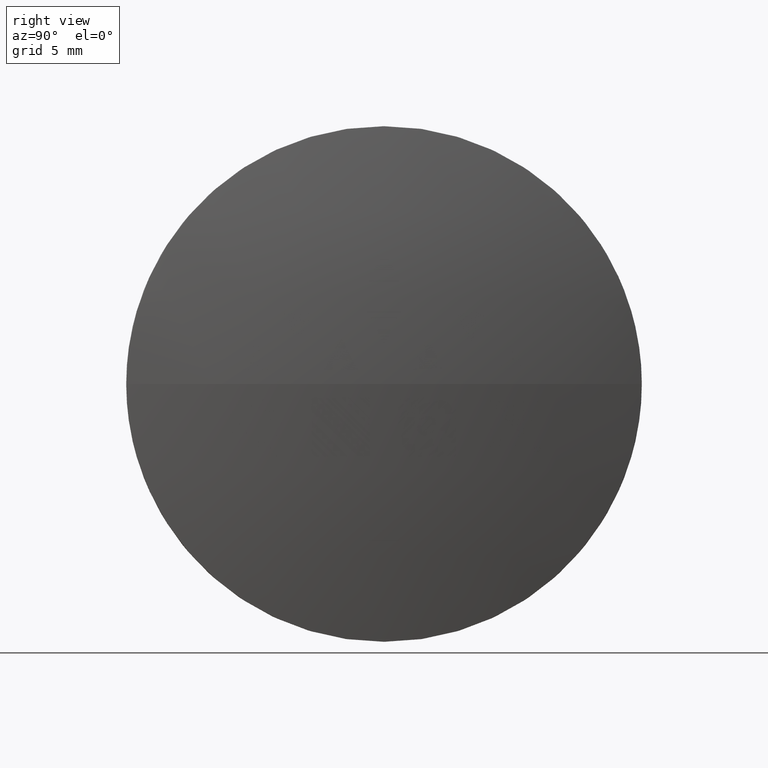
[diagram: clean part render]
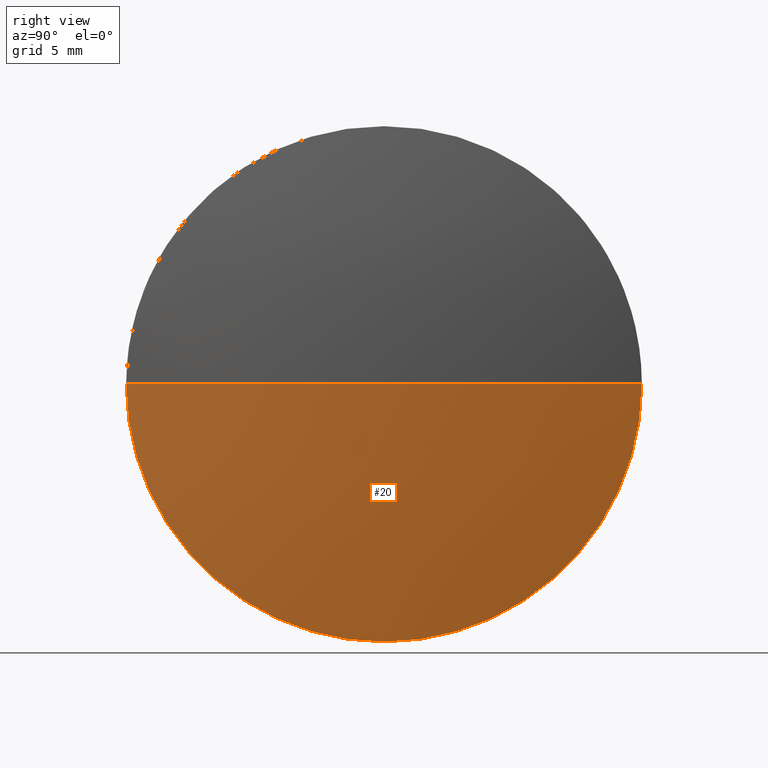
[diagram: same view with one face highlighted and labeled with its STEP entity id]
A machine part, right view. The second image highlights one B-rep face of the part: STEP entity #20.
In plain terms, the highlighted spherical surface has radius 103.539 mm.
Its self-contained STEP definition (entity closure, byte-faithful):
#4 = VERTEX_POINT ( 'NONE', #48 ) ;
#5 = DIRECTION ( 'NONE',  ( 0.0000000000000000000, 0.0000000000000000000, 1.000000000000000000 ) ) ;
#14 = CARTESIAN_POINT ( 'NONE',  ( 759.5697940900090500, 303.9353003407364300, 0.0000000000000000000 ) ) ;
#17 = CARTESIAN_POINT ( 'NONE',  ( 759.5697940900090500, 303.9353003407364300, 0.0000000000000000000 ) ) ;
#20 = ADVANCED_FACE ( 'NONE', ( #156 ), #171, .T. ) ;
#21 = DIRECTION ( 'NONE',  ( -1.000000000000000000, -0.0000000000000000000, -0.0000000000000000000 ) ) ;
#28 = CIRCLE ( 'NONE', #112, 19.99999999999996100 ) ;
#32 = AXIS2_PLACEMENT_3D ( 'NONE', #90, #56, #36 ) ;
#36 = DIRECTION ( 'NONE',  ( -1.000000000000000000, 0.0000000000000000000, 0.0000000000000000000 ) ) ;
#37 = CIRCLE ( 'NONE', #32, 103.5391025641024800 ) ;
#38 = VERTEX_POINT ( 'NONE', #146 ) ;
#48 = CARTESIAN_POINT ( 'NONE',  ( 861.1588966541114600, 283.9353003407364300, 0.0000000000000000000 ) ) ;
#49 = DIRECTION ( 'NONE',  ( 0.0000000000000000000, -1.000000000000000000, 0.0000000000000000000 ) ) ;
#50 = AXIS2_PLACEMENT_3D ( 'NONE', #118, #181, #52 ) ;
#52 = DIRECTION ( 'NONE',  ( 0.0000000000000000000, 0.0000000000000000000, 1.000000000000000000 ) ) ;
#53 = CARTESIAN_POINT ( 'NONE',  ( 863.1088966541115000, 303.9353003407364300, 0.0000000000000000000 ) ) ;
#56 = DIRECTION ( 'NONE',  ( 0.0000000000000000000, 0.0000000000000000000, -1.000000000000000000 ) ) ;
#75 = ORIENTED_EDGE ( 'NONE', *, *, #83, .F. ) ;
#83 = EDGE_CURVE ( 'NONE', #38, #4, #169, .T. ) ;
#85 = VERTEX_POINT ( 'NONE', #154 ) ;
#90 = CARTESIAN_POINT ( 'NONE',  ( 759.5697940900090500, 303.9353003407364300, 0.0000000000000000000 ) ) ;
#96 = EDGE_CURVE ( 'NONE', #85, #38, #28, .T. ) ;
#107 = ORIENTED_EDGE ( 'NONE', *, *, #126, .F. ) ;
#112 = AXIS2_PLACEMENT_3D ( 'NONE', #132, #21, #164 ) ;
#114 = EDGE_CURVE ( 'NONE', #161, #4, #37, .T. ) ;
#118 = CARTESIAN_POINT ( 'NONE',  ( 861.1588966541114600, 303.9353003407363200, 0.0000000000000000000 ) ) ;
#126 = EDGE_CURVE ( 'NONE', #161, #85, #158, .T. ) ;
#130 = ORIENTED_EDGE ( 'NONE', *, *, #96, .F. ) ;
#132 = CARTESIAN_POINT ( 'NONE',  ( 861.1588966541114600, 303.9353003407363200, 0.0000000000000000000 ) ) ;
#135 = DIRECTION ( 'NONE',  ( 0.0000000000000000000, -1.224646799147353200E-016, 1.000000000000000000 ) ) ;
#138 = DIRECTION ( 'NONE',  ( 0.0000000000000000000, -1.000000000000000000, -1.224646799147353200E-016 ) ) ;
#143 = AXIS2_PLACEMENT_3D ( 'NONE', #17, #135, #138 ) ;
#144 = ORIENTED_EDGE ( 'NONE', *, *, #114, .T. ) ;
#146 = CARTESIAN_POINT ( 'NONE',  ( 861.1588966541114600, 303.9353003407363200, -19.99999999999996100 ) ) ;
#147 = EDGE_LOOP ( 'NONE', ( #107, #144, #75, #130 ) ) ;
#154 = CARTESIAN_POINT ( 'NONE',  ( 861.1588966541114600, 323.9353003407363200, 2.449293598294688800E-015 ) ) ;
#156 = FACE_OUTER_BOUND ( 'NONE', #147, .T. ) ;
#158 = CIRCLE ( 'NONE', #143, 103.5391025641024500 ) ;
#161 = VERTEX_POINT ( 'NONE', #53 ) ;
#163 = AXIS2_PLACEMENT_3D ( 'NONE', #14, #5, #49 ) ;
#164 = DIRECTION ( 'NONE',  ( 0.0000000000000000000, 0.0000000000000000000, 1.000000000000000000 ) ) ;
#169 = CIRCLE ( 'NONE', #50, 19.99999999999996100 ) ;
#171 = SPHERICAL_SURFACE ( 'NONE', #163, 103.5391025641024500 ) ;
#181 = DIRECTION ( 'NONE',  ( -1.000000000000000000, -0.0000000000000000000, -0.0000000000000000000 ) ) ;